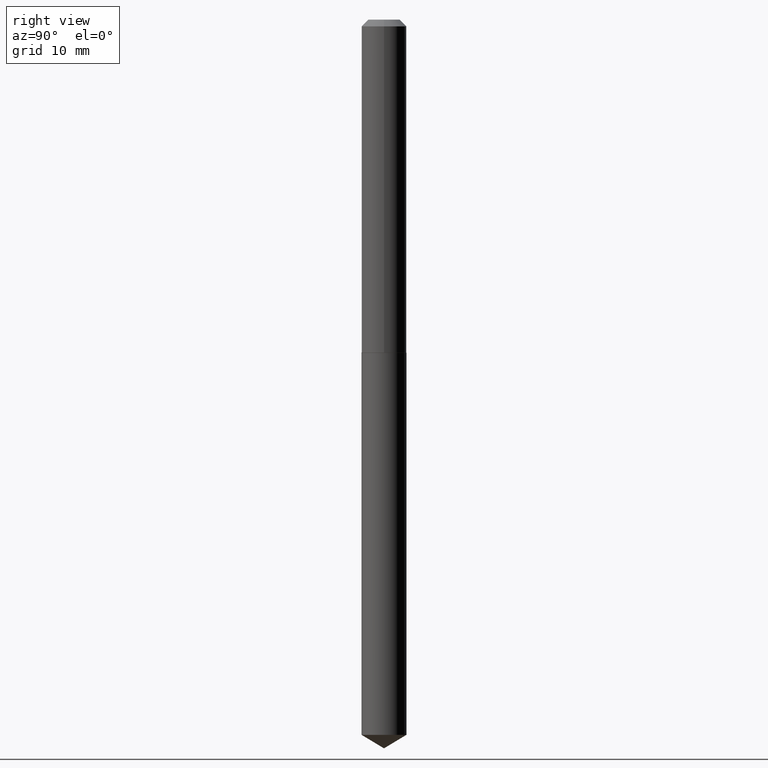
[diagram: clean part render]
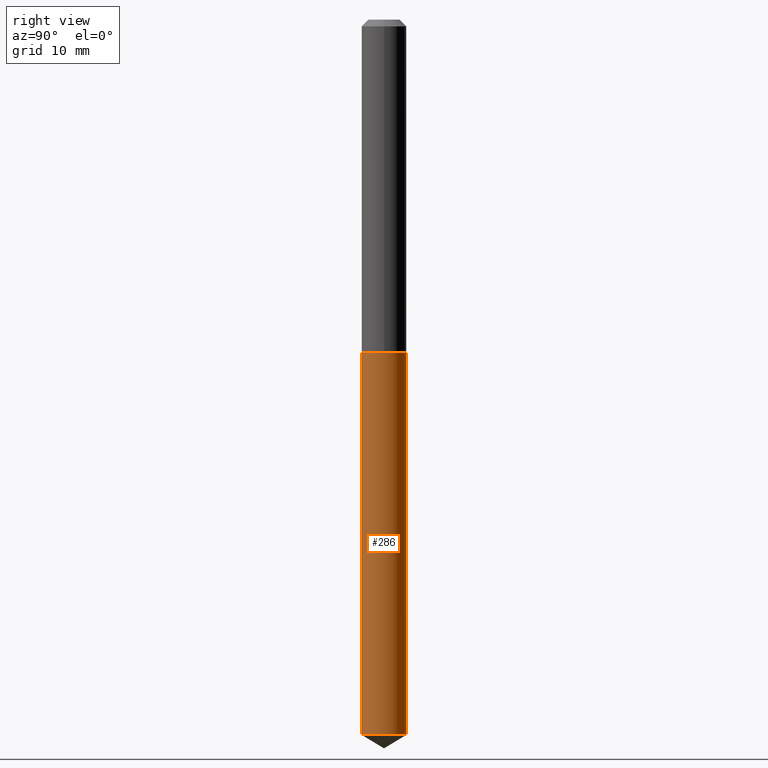
[diagram: same view with one face highlighted and labeled with its STEP entity id]
A machine part, right view. The second image highlights one B-rep face of the part: STEP entity #286.
In plain terms, the highlighted cylindrical surface (edge-blend (fillet) strip) has radius 2.6505 mm, axis along (-0, 0, 1).
Its self-contained STEP definition (entity closure, byte-faithful):
#2 = CARTESIAN_POINT ( 'NONE',  ( 3.783873883810261606E-29, -5.402369075591998725E-15, -1.547299999999999898 ) ) ;
#7 = VERTEX_POINT ( 'NONE', #265 ) ;
#57 = CIRCLE ( 'NONE', #256, 0.1043499999999999844 ) ;
#60 = DIRECTION ( 'NONE',  ( -2.445422308860357196E-29, 3.491547925658693024E-15, 1.000000000000000000 ) ) ;
#71 = AXIS2_PLACEMENT_3D ( 'NONE', #2, #162, #106 ) ;
#73 = CARTESIAN_POINT ( 'NONE',  ( -7.286721554165238553E-16, -0.1043500000000053829, -1.547299999999999676 ) ) ;
#76 = DIRECTION ( 'NONE',  ( -2.445422308860357196E-29, 3.491547925658693024E-15, 1.000000000000000000 ) ) ;
#84 = DIRECTION ( 'NONE',  ( -6.982962677686265922E-15, -1.000000000000000000, 5.235932905920965262E-15 ) ) ;
#106 = DIRECTION ( 'NONE',  ( -6.982962677686265922E-15, -1.000000000000000000, 2.617966452960482631E-15 ) ) ;
#108 = EDGE_CURVE ( 'NONE', #7, #314, #383, .T. ) ;
#121 = CARTESIAN_POINT ( 'NONE',  ( 7.414513447657022001E-16, 0.1043499999999945999, -1.547300000000000120 ) ) ;
#126 = CIRCLE ( 'NONE', #71, 0.1043499999999999844 ) ;
#132 = VECTOR ( 'NONE', #378, 39.37007874015748143 ) ;
#142 = ORIENTED_EDGE ( 'NONE', *, *, #333, .T. ) ;
#162 = DIRECTION ( 'NONE',  ( -2.445422308860357196E-29, 3.491547925658693024E-15, 1.000000000000000000 ) ) ;
#170 = CARTESIAN_POINT ( 'NONE',  ( 8.126455295285522582E-29, -1.160266056074924409E-14, -3.323100194404474461 ) ) ;
#171 = VERTEX_POINT ( 'NONE', #73 ) ;
#195 = EDGE_CURVE ( 'NONE', #171, #314, #126, .T. ) ;
#223 = CARTESIAN_POINT ( 'NONE',  ( -7.286721554164805666E-16, -0.1043500000000116140, -3.323100194404473573 ) ) ;
#231 = AXIS2_PLACEMENT_3D ( 'NONE', #258, #76, #371 ) ;
#243 = VECTOR ( 'NONE', #357, 39.37007874015748143 ) ;
#256 = AXIS2_PLACEMENT_3D ( 'NONE', #170, #60, #84 ) ;
#258 = CARTESIAN_POINT ( 'NONE',  ( 3.783873883810261606E-29, -5.402369075591998725E-15, -1.547299999999999898 ) ) ;
#261 = CARTESIAN_POINT ( 'NONE',  ( -7.286721554165238553E-16, -0.1043500000000053829, -1.547299999999999676 ) ) ;
#262 = ORIENTED_EDGE ( 'NONE', *, *, #301, .F. ) ;
#265 = CARTESIAN_POINT ( 'NONE',  ( 7.414513447657457846E-16, 0.1043499999999883965, -3.323100194404474905 ) ) ;
#285 = VERTEX_POINT ( 'NONE', #223 ) ;
#286 = ADVANCED_FACE ( 'NONE', ( #341 ), #316, .T. ) ;
#299 = LINE ( 'NONE', #261, #132 ) ;
#301 = EDGE_CURVE ( 'NONE', #285, #171, #299, .T. ) ;
#309 = ORIENTED_EDGE ( 'NONE', *, *, #195, .F. ) ;
#314 = VERTEX_POINT ( 'NONE', #349 ) ;
#316 = CYLINDRICAL_SURFACE ( 'NONE', #231, 0.1043499999999999844 ) ;
#333 = EDGE_CURVE ( 'NONE', #285, #7, #57, .T. ) ;
#341 = FACE_OUTER_BOUND ( 'NONE', #344, .T. ) ;
#344 = EDGE_LOOP ( 'NONE', ( #142, #350, #309, #262 ) ) ;
#349 = CARTESIAN_POINT ( 'NONE',  ( 7.414513447657459819E-16, 0.1043499999999945999, -1.547300000000000120 ) ) ;
#350 = ORIENTED_EDGE ( 'NONE', *, *, #108, .T. ) ;
#357 = DIRECTION ( 'NONE',  ( -2.445422308860357476E-29, 3.491547925658693418E-15, 1.000000000000000000 ) ) ;
#371 = DIRECTION ( 'NONE',  ( -6.982962677686265922E-15, -1.000000000000000000, 2.617966452960482631E-15 ) ) ;
#378 = DIRECTION ( 'NONE',  ( -2.445422308860357476E-29, 3.491547925658693418E-15, 1.000000000000000000 ) ) ;
#383 = LINE ( 'NONE', #121, #243 ) ;